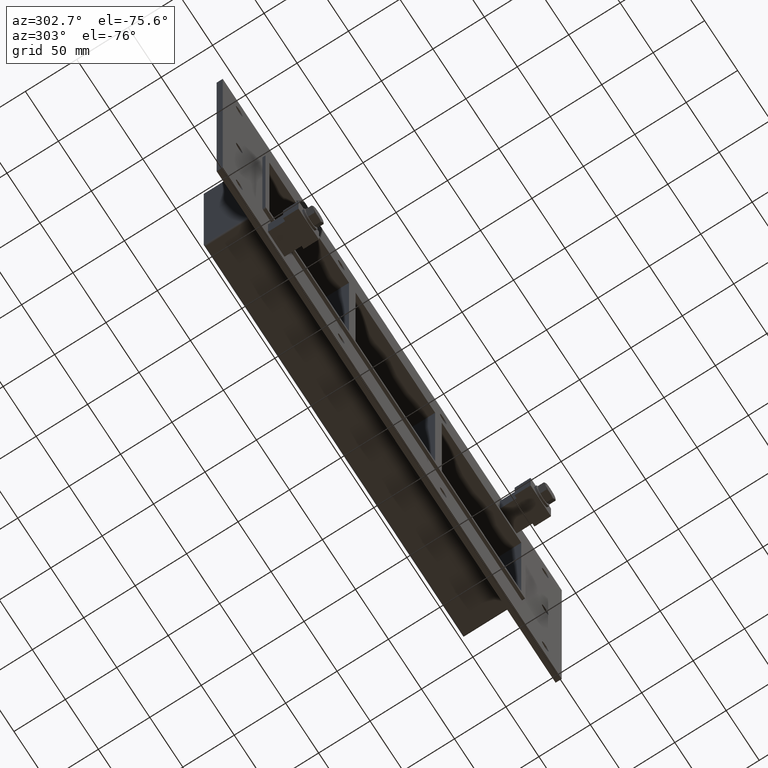
[diagram: clean part render]
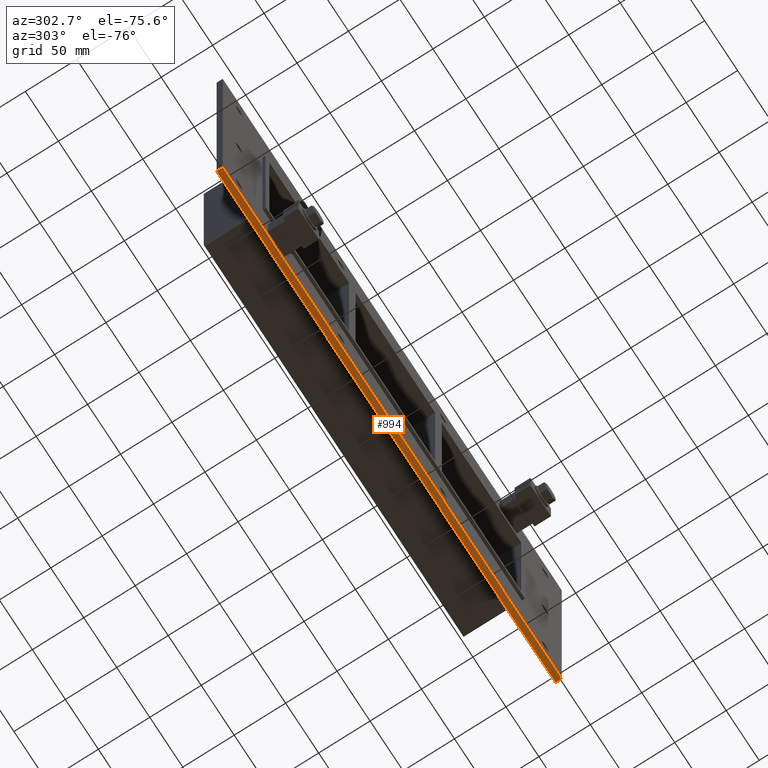
[diagram: same view with one face highlighted and labeled with its STEP entity id]
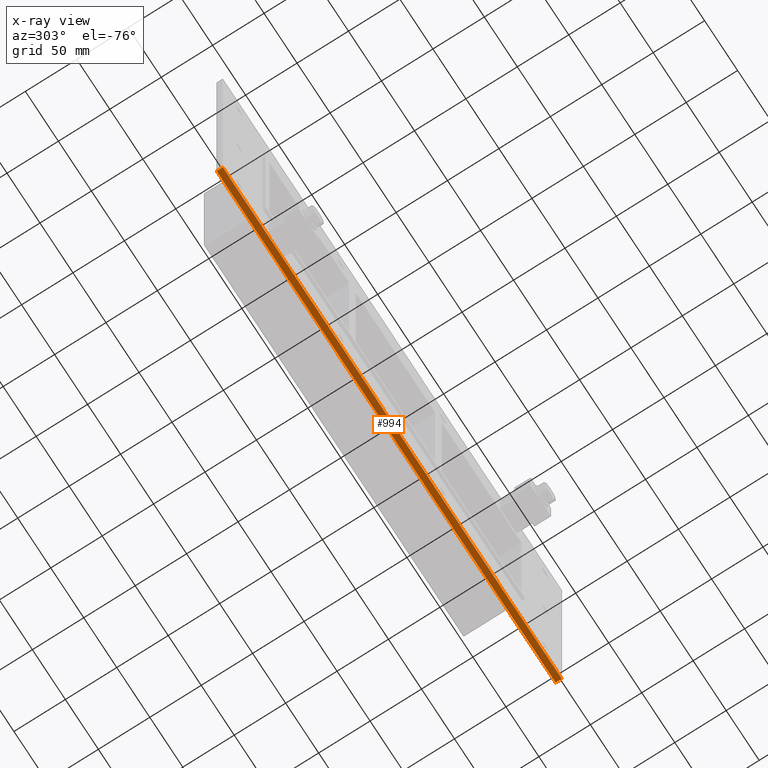
[diagram: x-ray of the same camera — body ghosted, the highlighted face saturated]
A machine part, auxiliary view. The second image highlights one B-rep face of the part: STEP entity #994.
The next image is the same camera in x-ray: the body ghosted, the highlighted face saturated — about 0% of this face is hidden behind the body in this view.
In plain terms, the highlighted planar face has unit normal (0, 0, -1).
Its self-contained STEP definition (entity closure, byte-faithful):
#691=CARTESIAN_POINT('',(256.75000000000006,6.000000000000001,-145.74999999999994));
#692=VERTEX_POINT('',#691);
#699=CARTESIAN_POINT('',(-256.75000000000006,6.000000000000001,-145.74999999999994));
#700=VERTEX_POINT('',#699);
#701=CARTESIAN_POINT('',(256.75000000000006,6.000000000000001,-145.74999999999994));
#702=DIRECTION('',(-1.0,0.0,0.0));
#703=VECTOR('',#702,513.50000000000011);
#704=LINE('',#701,#703);
#705=EDGE_CURVE('',#692,#700,#704,.T.);
#831=CARTESIAN_POINT('',(-256.75000000000006,0.0,-145.74999999999994));
#832=VERTEX_POINT('',#831);
#839=CARTESIAN_POINT('',(256.75000000000006,0.0,-145.74999999999994));
#840=VERTEX_POINT('',#839);
#841=CARTESIAN_POINT('',(256.75000000000006,0.0,-145.74999999999994));
#842=DIRECTION('',(-1.0,0.0,0.0));
#843=VECTOR('',#842,513.50000000000011);
#844=LINE('',#841,#843);
#845=EDGE_CURVE('',#840,#832,#844,.T.);
#969=CARTESIAN_POINT('',(-256.75000000000006,0.0,-145.74999999999994));
#970=DIRECTION('',(0.0,1.0,0.0));
#971=VECTOR('',#970,6.000000000000001);
#972=LINE('',#969,#971);
#973=EDGE_CURVE('',#832,#700,#972,.T.);
#978=CARTESIAN_POINT('',(256.75000000000006,0.0,-145.74999999999994));
#979=DIRECTION('',(0.0,0.0,-1.0));
#980=DIRECTION('',(-1.0,0.0,0.0));
#981=AXIS2_PLACEMENT_3D('',#978,#979,#980);
#982=PLANE('',#981);
#983=ORIENTED_EDGE('',*,*,#845,.T.);
#984=ORIENTED_EDGE('',*,*,#973,.T.);
#985=ORIENTED_EDGE('',*,*,#705,.F.);
#986=CARTESIAN_POINT('',(256.75000000000006,0.0,-145.74999999999994));
#987=DIRECTION('',(0.0,1.0,0.0));
#988=VECTOR('',#987,6.000000000000001);
#989=LINE('',#986,#988);
#990=EDGE_CURVE('',#840,#692,#989,.T.);
#991=ORIENTED_EDGE('',*,*,#990,.F.);
#992=EDGE_LOOP('',(#983,#984,#985,#991));
#993=FACE_OUTER_BOUND('',#992,.T.);
#994=ADVANCED_FACE('',(#993),#982,.T.);